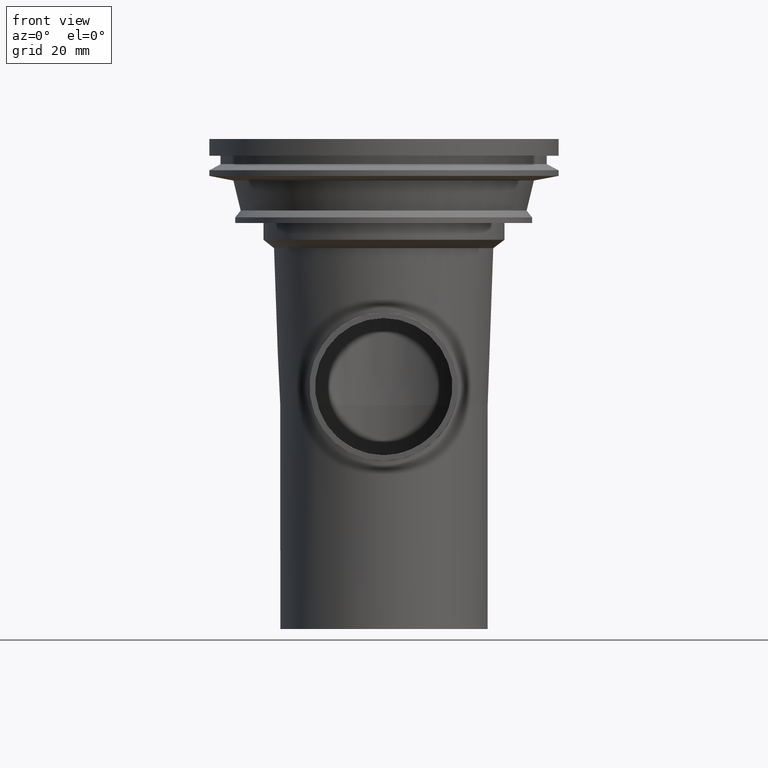
[diagram: clean part render]
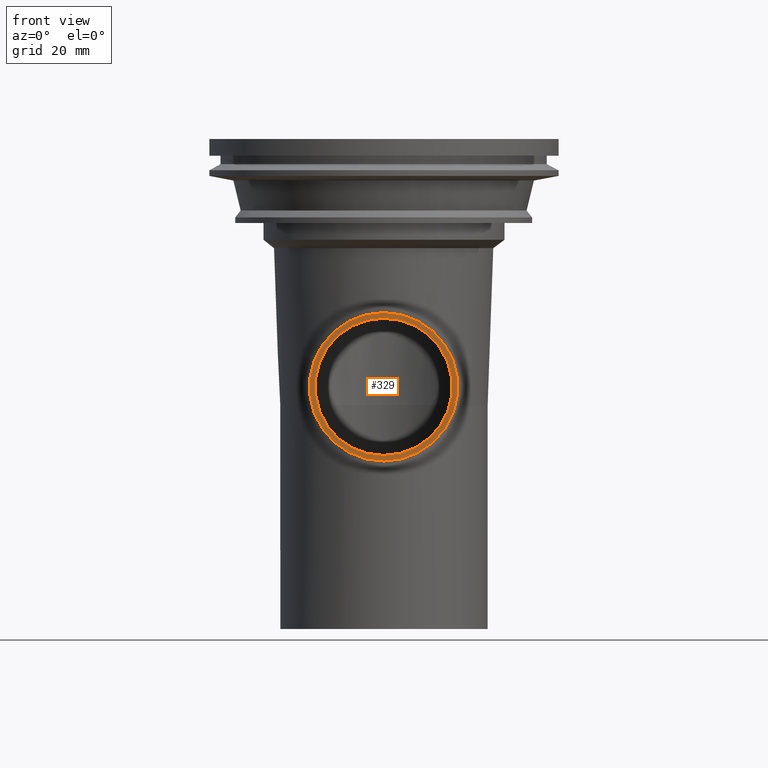
[diagram: same view with one face highlighted and labeled with its STEP entity id]
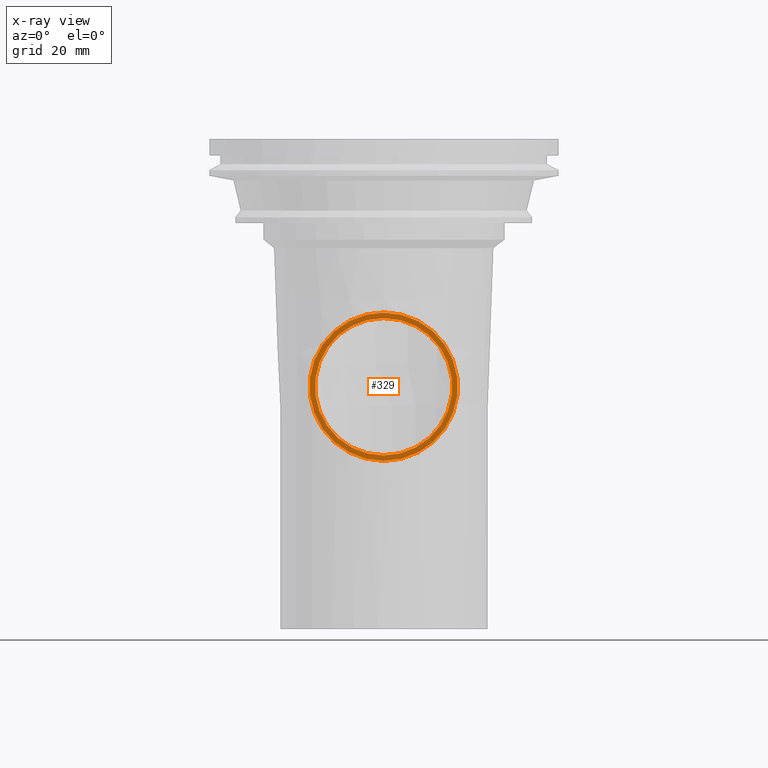
[diagram: x-ray of the same camera — body ghosted, the highlighted face saturated]
A machine part, front view. The second image highlights one B-rep face of the part: STEP entity #329.
The next image is the same camera in x-ray: the body ghosted, the highlighted face saturated — about 0% of this face is hidden behind the body in this view.
In plain terms, the highlighted planar face has unit normal (0, -1, 0).
Its self-contained STEP definition (entity closure, byte-faithful):
#26=PLANE('',#395);
#36=CIRCLE('',#344,24.5);
#61=CIRCLE('',#394,26.5);
#120=ORIENTED_EDGE('',*,*,#124,.T.);
#121=ORIENTED_EDGE('',*,*,#151,.F.);
#124=EDGE_CURVE('',#154,#154,#36,.T.);
#151=EDGE_CURVE('',#179,#179,#61,.T.);
#154=VERTEX_POINT('',#559);
#179=VERTEX_POINT('',#681);
#236=EDGE_LOOP('',(#120));
#237=EDGE_LOOP('',(#121));
#290=FACE_BOUND('',#236,.T.);
#291=FACE_BOUND('',#237,.T.);
#329=ADVANCED_FACE('',(#290,#291),#26,.T.);
#344=AXIS2_PLACEMENT_3D('',#558,#400,#401);
#394=AXIS2_PLACEMENT_3D('',#680,#500,#501);
#395=AXIS2_PLACEMENT_3D('',#682,#502,#503);
#400=DIRECTION('',(0.,1.,0.));
#401=DIRECTION('',(0.,0.,1.));
#500=DIRECTION('',(0.,1.,0.));
#501=DIRECTION('',(0.,0.,1.));
#502=DIRECTION('',(0.,-1.,0.));
#503=DIRECTION('',(0.,0.,-1.));
#558=CARTESIAN_POINT('',(0.,-86.,-88.5));
#559=CARTESIAN_POINT('',(0.,-86.,-64.));
#680=CARTESIAN_POINT('',(0.,-86.,-88.5));
#681=CARTESIAN_POINT('',(0.,-86.,-62.));
#682=CARTESIAN_POINT('',(0.,-86.,-62.));